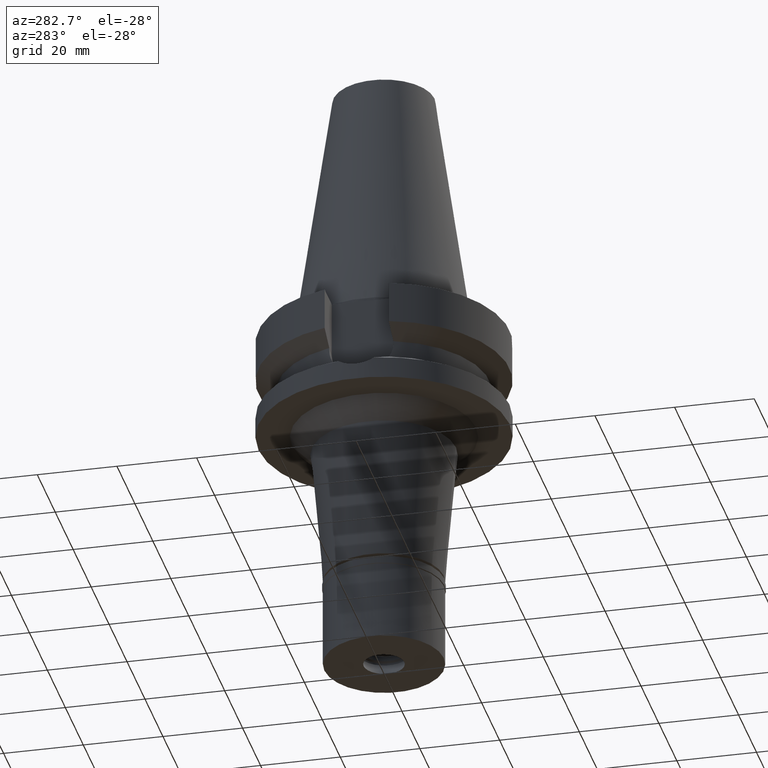
[diagram: clean part render]
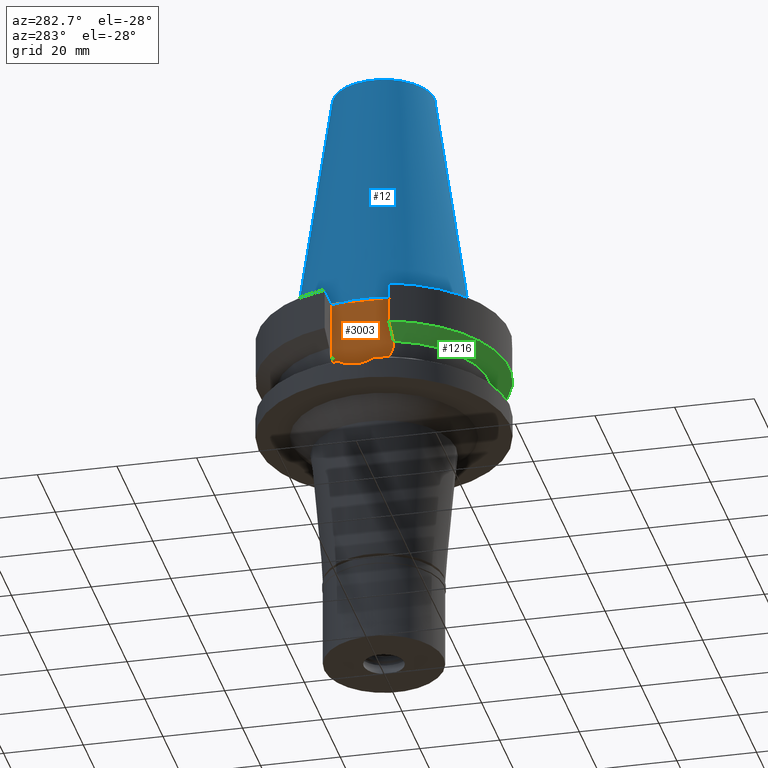
[diagram: same view with three faces highlighted in distinct colors, each labeled with its STEP entity id]
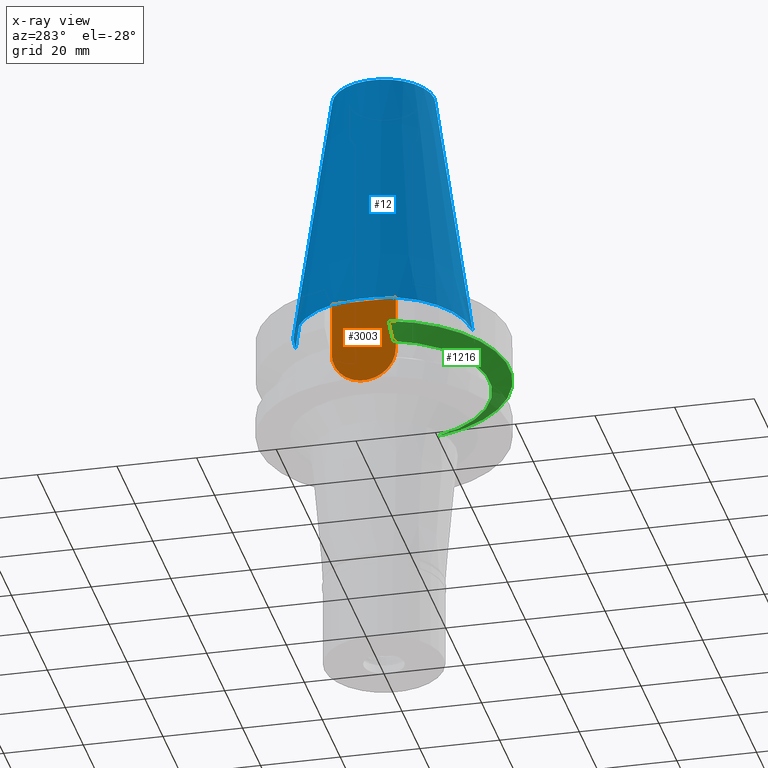
[diagram: x-ray of the same camera — body ghosted, the three highlighted faces saturated]
A machine part, auxiliary view with three faces highlighted in distinct colors.
The next image is the same camera in x-ray (body ghosted, the three faces saturated) — at least one of them is partly hidden behind the body in this view.
Their STEP definitions:

[orange] entity #3003 — the highlighted planar face has unit normal (-1, 0, 0).
#342 = CARTESIAN_POINT ( 'NONE',  ( -22.50000000000000000, -8.050000000000000711, -1.000000000000000000 ) ) ;
#472 = CARTESIAN_POINT ( 'NONE',  ( -22.50000000000000000, -8.050000000000000711, -1.000000000000000000 ) ) ;
#550 = CARTESIAN_POINT ( 'NONE',  ( -22.50000000000000000, 8.050000000000000711, -14.94999999999999929 ) ) ;
#651 = ORIENTED_EDGE ( 'NONE', *, *, #2136, .F. ) ;
#728 = DIRECTION ( 'NONE',  ( 0.0000000000000000000, 0.0000000000000000000, 1.000000000000000000 ) ) ;
#760 = CARTESIAN_POINT ( 'NONE',  ( -22.50000000000000000, 2.173748068486999793E-14, 0.0000000000000000000 ) ) ;
#805 = VERTEX_POINT ( 'NONE', #1219 ) ;
#806 = DIRECTION ( 'NONE',  ( 0.0000000000000000000, 1.000000000000000000, 0.0000000000000000000 ) ) ;
#814 = VERTEX_POINT ( 'NONE', #978 ) ;
#830 = VERTEX_POINT ( 'NONE', #472 ) ;
#978 = CARTESIAN_POINT ( 'NONE',  ( -22.50000000000000000, -8.050000000000000711, -14.94999999999999929 ) ) ;
#989 = FACE_OUTER_BOUND ( 'NONE', #2501, .T. ) ;
#1070 = LINE ( 'NONE', #550, #3143 ) ;
#1088 = DIRECTION ( 'NONE',  ( 0.0000000000000000000, 0.0000000000000000000, -1.000000000000000000 ) ) ;
#1114 = AXIS2_PLACEMENT_3D ( 'NONE', #2955, #2357, #2121 ) ;
#1219 = CARTESIAN_POINT ( 'NONE',  ( -22.50000000000000000, 8.050000000000000711, -14.94999999999999929 ) ) ;
#1278 = DIRECTION ( 'NONE',  ( 0.0000000000000000000, 0.0000000000000000000, 1.000000000000000000 ) ) ;
#1424 = CIRCLE ( 'NONE', #1114, 8.050000000000000711 ) ;
#1508 = EDGE_CURVE ( 'NONE', #830, #1591, #2219, .T. ) ;
#1563 = CARTESIAN_POINT ( 'NONE',  ( -22.50000000000000000, 8.050000000000000711, -1.000000000000000000 ) ) ;
#1591 = VERTEX_POINT ( 'NONE', #1563 ) ;
#1630 = ORIENTED_EDGE ( 'NONE', *, *, #2489, .F. ) ;
#1962 = DIRECTION ( 'NONE',  ( -1.000000000000000000, 0.0000000000000000000, 0.0000000000000000000 ) ) ;
#2003 = CARTESIAN_POINT ( 'NONE',  ( -22.50000000000000000, -8.050000000000000711, -1.000000000000000000 ) ) ;
#2121 = DIRECTION ( 'NONE',  ( 0.0000000000000000000, 0.0000000000000000000, -1.000000000000000000 ) ) ;
#2136 = EDGE_CURVE ( 'NONE', #805, #1591, #1070, .T. ) ;
#2219 = LINE ( 'NONE', #2003, #2370 ) ;
#2240 = LINE ( 'NONE', #342, #2987 ) ;
#2357 = DIRECTION ( 'NONE',  ( 1.000000000000000000, 0.0000000000000000000, 0.0000000000000000000 ) ) ;
#2370 = VECTOR ( 'NONE', #806, 1000.000000000000000 ) ;
#2409 = ORIENTED_EDGE ( 'NONE', *, *, #2631, .F. ) ;
#2489 = EDGE_CURVE ( 'NONE', #814, #805, #1424, .T. ) ;
#2501 = EDGE_LOOP ( 'NONE', ( #651, #1630, #2409, #2657 ) ) ;
#2631 = EDGE_CURVE ( 'NONE', #830, #814, #2240, .T. ) ;
#2657 = ORIENTED_EDGE ( 'NONE', *, *, #1508, .T. ) ;
#2693 = AXIS2_PLACEMENT_3D ( 'NONE', #760, #1962, #728 ) ;
#2955 = CARTESIAN_POINT ( 'NONE',  ( -22.50000000000000000, 1.807578675540999863E-14, -14.94999999999999929 ) ) ;
#2987 = VECTOR ( 'NONE', #1088, 1000.000000000000000 ) ;
#3003 = ADVANCED_FACE ( 'NONE', ( #989 ), #3137, .T. ) ;
#3137 = PLANE ( 'NONE',  #2693 ) ;
#3143 = VECTOR ( 'NONE', #1278, 1000.000000000000000 ) ;

[blue] entity #12 — the highlighted conical surface has half-angle 8.297 deg.
#12 = ADVANCED_FACE ( 'NONE', ( #2437 ), #1417, .T. ) ;
#134 = DIRECTION ( 'NONE',  ( 0.0000000000000000000, -1.000000000000000000, 0.0000000000000000000 ) ) ;
#140 = VERTEX_POINT ( 'NONE', #546 ) ;
#288 = CARTESIAN_POINT ( 'NONE',  ( 0.0000000000000000000, 12.68766899429999917, 65.40000000000000568 ) ) ;
#299 = DIRECTION ( 'NONE',  ( 0.0000000000000000000, -0.1443043893539925626, -0.9895333461855498891 ) ) ;
#336 = VECTOR ( 'NONE', #1397, 1000.000000000000114 ) ;
#546 = CARTESIAN_POINT ( 'NONE',  ( 0.0000000000000000000, -22.22500000000000142, 7.815970093360999808E-14 ) ) ;
#570 = ORIENTED_EDGE ( 'NONE', *, *, #2007, .F. ) ;
#687 = CARTESIAN_POINT ( 'NONE',  ( 0.0000000000000000000, -12.68766899429999917, 65.40000000000000568 ) ) ;
#949 = DIRECTION ( 'NONE',  ( 0.0000000000000000000, -1.000000000000000000, 0.0000000000000000000 ) ) ;
#958 = AXIS2_PLACEMENT_3D ( 'NONE', #2420, #2192, #949 ) ;
#963 = CIRCLE ( 'NONE', #2983, 12.68766899429999917 ) ;
#975 = ORIENTED_EDGE ( 'NONE', *, *, #2353, .T. ) ;
#1034 = EDGE_LOOP ( 'NONE', ( #2487, #570, #2429, #975 ) ) ;
#1233 = VERTEX_POINT ( 'NONE', #2559 ) ;
#1310 = AXIS2_PLACEMENT_3D ( 'NONE', #2294, #2550, #2332 ) ;
#1333 = CARTESIAN_POINT ( 'NONE',  ( 0.0000000000000000000, 1.625106302469000024E-14, 65.40000000000000568 ) ) ;
#1397 = DIRECTION ( 'NONE',  ( 0.0000000000000000000, 0.1443043893539925626, -0.9895333461855498891 ) ) ;
#1417 = CONICAL_SURFACE ( 'NONE', #958, 17.45633449714999941, 0.1448099680379422438 ) ;
#1515 = VERTEX_POINT ( 'NONE', #288 ) ;
#1784 = EDGE_CURVE ( 'NONE', #1912, #1515, #963, .T. ) ;
#1821 = CIRCLE ( 'NONE', #1310, 22.22500000000000142 ) ;
#1912 = VERTEX_POINT ( 'NONE', #2394 ) ;
#2007 = EDGE_CURVE ( 'NONE', #1912, #140, #2871, .T. ) ;
#2164 = LINE ( 'NONE', #3098, #336 ) ;
#2178 = EDGE_CURVE ( 'NONE', #140, #1233, #1821, .T. ) ;
#2192 = DIRECTION ( 'NONE',  ( 0.0000000000000000000, 0.0000000000000000000, -1.000000000000000000 ) ) ;
#2294 = CARTESIAN_POINT ( 'NONE',  ( 0.0000000000000000000, 1.625106302469000024E-14, 2.842170943039999687E-14 ) ) ;
#2316 = DIRECTION ( 'NONE',  ( 0.0000000000000000000, 0.0000000000000000000, -1.000000000000000000 ) ) ;
#2332 = DIRECTION ( 'NONE',  ( 0.0000000000000000000, -1.000000000000000000, 0.0000000000000000000 ) ) ;
#2353 = EDGE_CURVE ( 'NONE', #1515, #1233, #2164, .T. ) ;
#2394 = CARTESIAN_POINT ( 'NONE',  ( 0.0000000000000000000, -12.68766899429999917, 65.40000000000000568 ) ) ;
#2420 = CARTESIAN_POINT ( 'NONE',  ( 0.0000000000000000000, 1.625106302469000024E-14, 32.70000000000000284 ) ) ;
#2429 = ORIENTED_EDGE ( 'NONE', *, *, #1784, .T. ) ;
#2437 = FACE_OUTER_BOUND ( 'NONE', #1034, .T. ) ;
#2487 = ORIENTED_EDGE ( 'NONE', *, *, #2178, .F. ) ;
#2550 = DIRECTION ( 'NONE',  ( 0.0000000000000000000, 0.0000000000000000000, -1.000000000000000000 ) ) ;
#2559 = CARTESIAN_POINT ( 'NONE',  ( 0.0000000000000000000, 22.22500000000000142, 7.815970093360999808E-14 ) ) ;
#2871 = LINE ( 'NONE', #687, #2926 ) ;
#2926 = VECTOR ( 'NONE', #299, 1000.000000000000114 ) ;
#2983 = AXIS2_PLACEMENT_3D ( 'NONE', #1333, #2316, #134 ) ;
#3098 = CARTESIAN_POINT ( 'NONE',  ( 0.0000000000000000000, 12.68766899429999917, 65.40000000000000568 ) ) ;

[green] entity #1216 — the highlighted conical surface has half-angle 60 deg.
#75 = CARTESIAN_POINT ( 'NONE',  ( -26.83754612425921593, -8.049990815373908148, -13.57774890178659177 ) ) ;
#83 = CONICAL_SURFACE ( 'NONE', #2578, 29.00000000000000000, 1.047197551196400456 ) ;
#155 = VERTEX_POINT ( 'NONE', #346 ) ;
#259 = CARTESIAN_POINT ( 'NONE',  ( 0.0000000000000000000, 1.065333950388000029E-14, -14.45225699861000024 ) ) ;
#346 = CARTESIAN_POINT ( 'NONE',  ( -30.45402291389999760, -8.049999276991000485, -11.56551216465999943 ) ) ;
#351 = EDGE_LOOP ( 'NONE', ( #1048, #1293, #1032, #1113 ) ) ;
#410 = CARTESIAN_POINT ( 'NONE',  ( 26.83757719471653402, -8.050003169949272674, -13.57772971230303050 ) ) ;
#547 = CIRCLE ( 'NONE', #1477, 26.50000000000000711 ) ;
#613 = DIRECTION ( 'NONE',  ( 0.0000000000000000000, 1.000000000000000000, 0.0000000000000000000 ) ) ;
#630 = DIRECTION ( 'NONE',  ( 0.0000000000000000000, 0.0000000000000000000, 1.000000000000000000 ) ) ;
#680 = CARTESIAN_POINT ( 'NONE',  ( 0.0000000000000000000, 1.065333950388000029E-14, -13.00888132564000088 ) ) ;
#695 = CARTESIAN_POINT ( 'NONE',  ( 30.45402272279000044, -8.049999999999000622, -11.56550565266999975 ) ) ;
#714 = DIRECTION ( 'NONE',  ( 0.9527442516822307583, -0.3037735849057093818, 0.0000000000000000000 ) ) ;
#773 = EDGE_CURVE ( 'NONE', #2160, #1390, #547, .T. ) ;
#1018 = CARTESIAN_POINT ( 'NONE',  ( 25.24772266958000344, -8.050000000000000711, -14.45225699861000024 ) ) ;
#1032 = ORIENTED_EDGE ( 'NONE', *, *, #2843, .T. ) ;
#1048 = ORIENTED_EDGE ( 'NONE', *, *, #2608, .T. ) ;
#1076 = CARTESIAN_POINT ( 'NONE',  ( -30.45402291389999760, -8.049999276991000485, -11.56551216465999943 ) ) ;
#1113 = ORIENTED_EDGE ( 'NONE', *, *, #1432, .F. ) ;
#1170 = FACE_OUTER_BOUND ( 'NONE', #351, .T. ) ;
#1214 = DIRECTION ( 'NONE',  ( 0.0000000000000000000, -1.000000000000000000, 0.0000000000000000000 ) ) ;
#1216 = ADVANCED_FACE ( 'NONE', ( #1170 ), #83, .T. ) ;
#1293 = ORIENTED_EDGE ( 'NONE', *, *, #773, .F. ) ;
#1348 = VERTEX_POINT ( 'NONE', #695 ) ;
#1390 = VERTEX_POINT ( 'NONE', #2938 ) ;
#1416 = CIRCLE ( 'NONE', #2417, 31.50000000000000000 ) ;
#1432 = EDGE_CURVE ( 'NONE', #155, #1348, #1416, .T. ) ;
#1477 = AXIS2_PLACEMENT_3D ( 'NONE', #259, #2899, #714 ) ;
#1589 = B_SPLINE_CURVE_WITH_KNOTS ( 'NONE', 3,
 ( #1076, #2784, #75, #3007 ),
 .UNSPECIFIED., .F., .F.,
 ( 4, 4 ),
 ( 0.0000000000000000000, 1.000000000000000000 ),
 .UNSPECIFIED. ) ;
#1949 = DIRECTION ( 'NONE',  ( 0.0000000000000000000, 0.0000000000000000000, 1.000000000000000000 ) ) ;
#2096 = CARTESIAN_POINT ( 'NONE',  ( 28.57294941119981146, -8.050008287464155643, -12.61547996126434512 ) ) ;
#2105 = B_SPLINE_CURVE_WITH_KNOTS ( 'NONE', 3,
 ( #2863, #410, #2096, #2354 ),
 .UNSPECIFIED., .F., .F.,
 ( 4, 4 ),
 ( 0.0000000000000000000, 1.000000000000000000 ),
 .UNSPECIFIED. ) ;
#2160 = VERTEX_POINT ( 'NONE', #1018 ) ;
#2354 = CARTESIAN_POINT ( 'NONE',  ( 30.45402272279000044, -8.049999999999000622, -11.56550565266999975 ) ) ;
#2410 = CARTESIAN_POINT ( 'NONE',  ( 0.0000000000000000000, 1.065333950388000029E-14, -11.56550565266999975 ) ) ;
#2417 = AXIS2_PLACEMENT_3D ( 'NONE', #2410, #1949, #1214 ) ;
#2578 = AXIS2_PLACEMENT_3D ( 'NONE', #680, #630, #613 ) ;
#2608 = EDGE_CURVE ( 'NONE', #155, #1390, #1589, .T. ) ;
#2784 = CARTESIAN_POINT ( 'NONE',  ( -28.57292325612248263, -8.049998554924691518, -12.61549607476626100 ) ) ;
#2843 = EDGE_CURVE ( 'NONE', #2160, #1348, #2105, .T. ) ;
#2863 = CARTESIAN_POINT ( 'NONE',  ( 25.24772266958000344, -8.050000000000000711, -14.45225699861000024 ) ) ;
#2899 = DIRECTION ( 'NONE',  ( 0.0000000000000000000, 0.0000000000000000000, -1.000000000000000000 ) ) ;
#2938 = CARTESIAN_POINT ( 'NONE',  ( -25.24772413216999922, -8.049995412768000236, -14.45229205104999970 ) ) ;
#3007 = CARTESIAN_POINT ( 'NONE',  ( -25.24772413216999922, -8.049995412768000236, -14.45229205104999970 ) ) ;